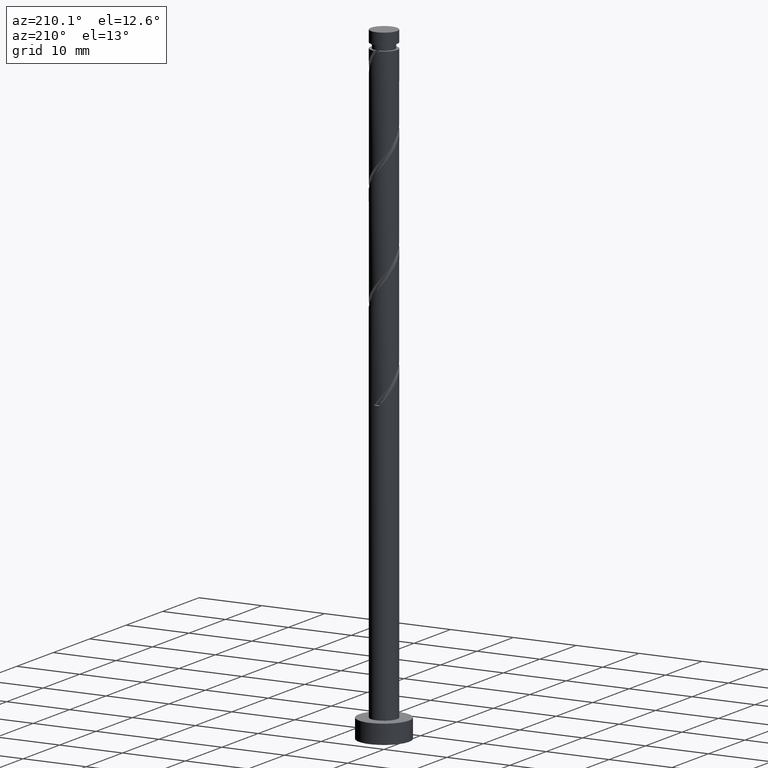
[diagram: clean part render]
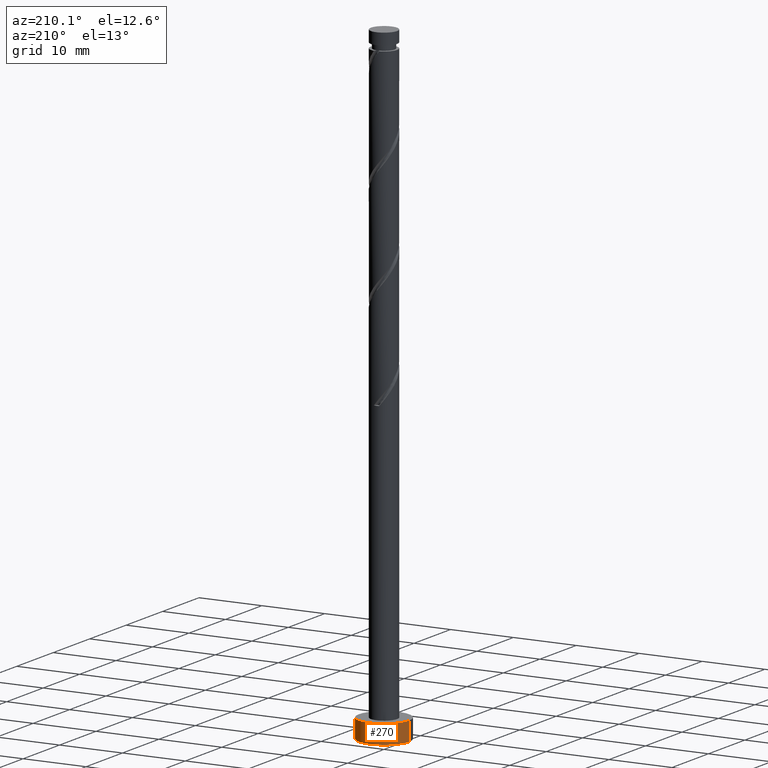
[diagram: same view with one face highlighted and labeled with its STEP entity id]
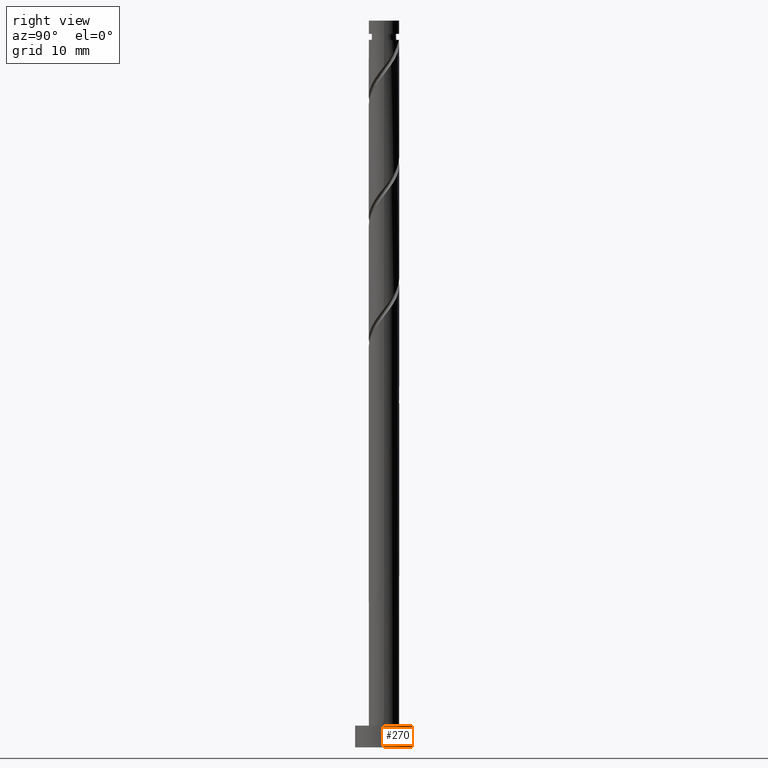
[diagram: same view with one face highlighted and labeled with its STEP entity id]
A machine part, auxiliary view. The second image highlights one B-rep face of the part: STEP entity #270.
A second angle (right view) of the same face is appended — the face is thin or edge-on in the first view.
In plain terms, the highlighted cylindrical surface (edge-blend (fillet) strip) has radius 4 mm, axis along (-0, -0, -1).
Its self-contained STEP definition (entity closure, byte-faithful):
#103 = DIRECTION ( 'NONE',  ( -0.000000000000000000, -0.000000000000000000, -1.000000000000000000 ) ) ;
#116 = VERTEX_POINT ( 'NONE', #1038 ) ;
#125 = CARTESIAN_POINT ( 'NONE',  ( 0.000000000000000000, 0.000000000000000000, 3.000000000000000000 ) ) ;
#156 = AXIS2_PLACEMENT_3D ( 'NONE', #125, #1071, #1390 ) ;
#183 = AXIS2_PLACEMENT_3D ( 'NONE', #469, #1408, #1374 ) ;
#203 = VERTEX_POINT ( 'NONE', #793 ) ;
#248 = EDGE_CURVE ( 'NONE', #510, #116, #1174, .T. ) ;
#250 = FACE_OUTER_BOUND ( 'NONE', #665, .T. ) ;
#270 = ADVANCED_FACE ( 'NONE', ( #250 ), #1411, .T. ) ;
#402 = CIRCLE ( 'NONE', #183, 4.000000000000000000 ) ;
#413 = CARTESIAN_POINT ( 'NONE',  ( 4.000000000000000000, 4.898587196589412829E-16, 3.000000000000000000 ) ) ;
#420 = DIRECTION ( 'NONE',  ( -0.000000000000000000, -0.000000000000000000, -1.000000000000000000 ) ) ;
#443 = ORIENTED_EDGE ( 'NONE', *, *, #1141, .T. ) ;
#469 = CARTESIAN_POINT ( 'NONE',  ( 0.000000000000000000, 0.000000000000000000, 0.000000000000000000 ) ) ;
#510 = VERTEX_POINT ( 'NONE', #413 ) ;
#526 = AXIS2_PLACEMENT_3D ( 'NONE', #684, #1023, #917 ) ;
#627 = ORIENTED_EDGE ( 'NONE', *, *, #1179, .T. ) ;
#665 = EDGE_LOOP ( 'NONE', ( #811, #443, #627, #732 ) ) ;
#684 = CARTESIAN_POINT ( 'NONE',  ( 0.000000000000000000, 0.000000000000000000, 3.000000000000000000 ) ) ;
#721 = VERTEX_POINT ( 'NONE', #1336 ) ;
#732 = ORIENTED_EDGE ( 'NONE', *, *, #1188, .F. ) ;
#793 = CARTESIAN_POINT ( 'NONE',  ( 4.000000000000000000, 4.898587196589412829E-16, 0.000000000000000000 ) ) ;
#811 = ORIENTED_EDGE ( 'NONE', *, *, #248, .F. ) ;
#917 = DIRECTION ( 'NONE',  ( 1.000000000000000000, 0.000000000000000000, 0.000000000000000000 ) ) ;
#938 = LINE ( 'NONE', #1387, #1253 ) ;
#997 = CARTESIAN_POINT ( 'NONE',  ( 4.000000000000000000, 4.898587196589412829E-16, 3.000000000000000000 ) ) ;
#1023 = DIRECTION ( 'NONE',  ( 0.000000000000000000, 0.000000000000000000, 1.000000000000000000 ) ) ;
#1038 = CARTESIAN_POINT ( 'NONE',  ( -4.000000000000000000, 0.000000000000000000, 3.000000000000000000 ) ) ;
#1057 = VECTOR ( 'NONE', #420, 1000.000000000000000 ) ;
#1071 = DIRECTION ( 'NONE',  ( -0.000000000000000000, -0.000000000000000000, -1.000000000000000000 ) ) ;
#1141 = EDGE_CURVE ( 'NONE', #510, #203, #1439, .T. ) ;
#1174 = CIRCLE ( 'NONE', #526, 4.000000000000000000 ) ;
#1179 = EDGE_CURVE ( 'NONE', #203, #721, #402, .T. ) ;
#1188 = EDGE_CURVE ( 'NONE', #116, #721, #938, .T. ) ;
#1253 = VECTOR ( 'NONE', #103, 1000.000000000000000 ) ;
#1336 = CARTESIAN_POINT ( 'NONE',  ( -4.000000000000000000, 0.000000000000000000, 0.000000000000000000 ) ) ;
#1374 = DIRECTION ( 'NONE',  ( 1.000000000000000000, 0.000000000000000000, 0.000000000000000000 ) ) ;
#1387 = CARTESIAN_POINT ( 'NONE',  ( -4.000000000000000000, 0.000000000000000000, 3.000000000000000000 ) ) ;
#1390 = DIRECTION ( 'NONE',  ( -1.000000000000000000, 0.000000000000000000, 0.000000000000000000 ) ) ;
#1408 = DIRECTION ( 'NONE',  ( 0.000000000000000000, 0.000000000000000000, 1.000000000000000000 ) ) ;
#1411 = CYLINDRICAL_SURFACE ( 'NONE', #156, 4.000000000000000000 ) ;
#1439 = LINE ( 'NONE', #997, #1057 ) ;